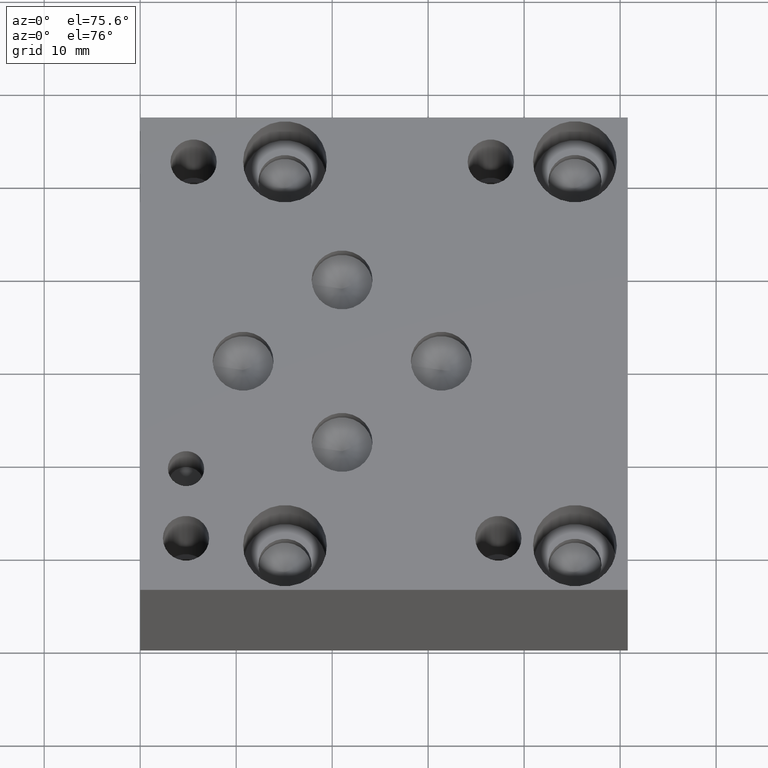
[diagram: clean part render]
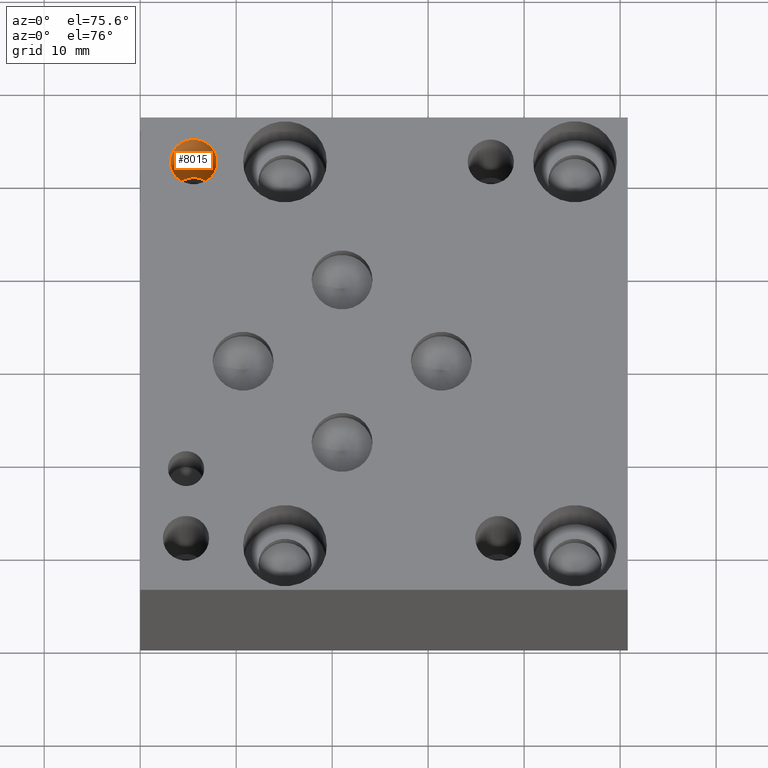
[diagram: same view with one face highlighted and labeled with its STEP entity id]
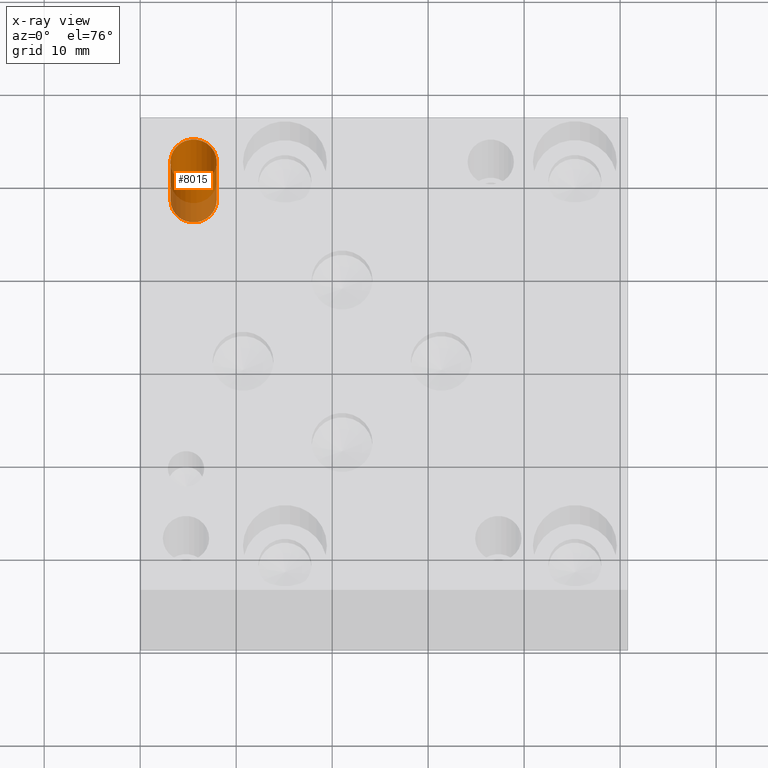
[diagram: x-ray of the same camera — body ghosted, the highlighted face saturated]
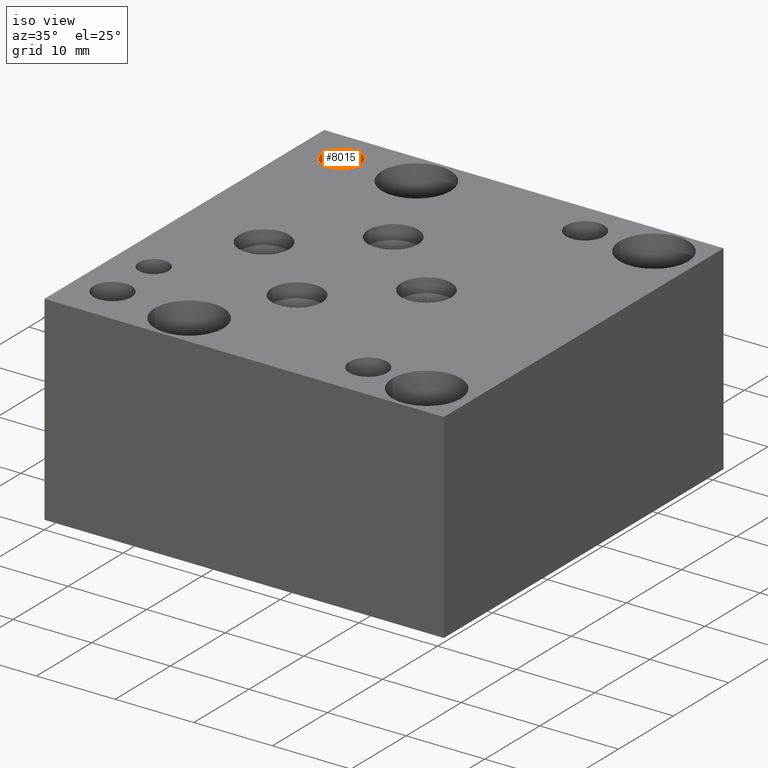
[diagram: same view with one face highlighted and labeled with its STEP entity id]
A machine part, auxiliary view. The second image highlights one B-rep face of the part: STEP entity #8015.
The next image is the same camera in x-ray: the body ghosted, the highlighted face saturated — about 27% of this face is hidden behind the body in this view.
A second angle (iso view) of the same face is appended — the face is thin or edge-on in the first view.
In plain terms, the highlighted cylindrical surface (bore or boss wall) has radius 2.413 mm, axis along (0, 0, 1).
Its self-contained STEP definition (entity closure, byte-faithful):
#136=CIRCLE('',#8452,2.413);
#137=CIRCLE('',#8453,2.413);
#139=CIRCLE('',#8456,2.413);
#140=CIRCLE('',#8457,2.413);
#182=CYLINDRICAL_SURFACE('',#8455,2.413);
#894=FACE_OUTER_BOUND('',#1341,.T.);
#1341=EDGE_LOOP('',(#6922,#6923,#6924,#6925,#6926,#6927));
#2171=LINE('',#13464,#2978);
#2978=VECTOR('',#10106,2.413);
#3724=VERTEX_POINT('',#13453);
#3725=VERTEX_POINT('',#13454);
#3727=VERTEX_POINT('',#13460);
#3728=VERTEX_POINT('',#13461);
#4809=EDGE_CURVE('',#3724,#3725,#136,.T.);
#4810=EDGE_CURVE('',#3725,#3724,#137,.T.);
#4812=EDGE_CURVE('',#3727,#3728,#139,.T.);
#4813=EDGE_CURVE('',#3728,#3727,#140,.T.);
#4814=EDGE_CURVE('',#3728,#3725,#2171,.T.);
#6922=ORIENTED_EDGE('',*,*,#4812,.F.);
#6923=ORIENTED_EDGE('',*,*,#4813,.F.);
#6924=ORIENTED_EDGE('',*,*,#4814,.T.);
#6925=ORIENTED_EDGE('',*,*,#4809,.F.);
#6926=ORIENTED_EDGE('',*,*,#4810,.F.);
#6927=ORIENTED_EDGE('',*,*,#4814,.F.);
#8015=ADVANCED_FACE('',(#894),#182,.F.);
#8452=AXIS2_PLACEMENT_3D('',#13455,#10094,#10095);
#8453=AXIS2_PLACEMENT_3D('',#13456,#10096,#10097);
#8455=AXIS2_PLACEMENT_3D('',#13459,#10100,#10101);
#8456=AXIS2_PLACEMENT_3D('',#13462,#10102,#10103);
#8457=AXIS2_PLACEMENT_3D('',#13463,#10104,#10105);
#10094=DIRECTION('center_axis',(0.,0.,1.));
#10095=DIRECTION('ref_axis',(1.,0.,0.));
#10096=DIRECTION('center_axis',(0.,0.,1.));
#10097=DIRECTION('ref_axis',(1.,0.,0.));
#10100=DIRECTION('center_axis',(0.,0.,1.));
#10101=DIRECTION('ref_axis',(1.,0.,0.));
#10102=DIRECTION('center_axis',(0.,0.,-1.));
#10103=DIRECTION('ref_axis',(1.,0.,0.));
#10104=DIRECTION('center_axis',(0.,0.,-1.));
#10105=DIRECTION('ref_axis',(1.,0.,0.));
#10106=DIRECTION('',(0.,0.,-1.));
#13453=CARTESIAN_POINT('',(7.9756,46.0248,9.398));
#13454=CARTESIAN_POINT('',(3.1496,46.0248,9.398));
#13455=CARTESIAN_POINT('Origin',(5.5626,46.0248,9.398));
#13456=CARTESIAN_POINT('Origin',(5.5626,46.0248,9.398));
#13459=CARTESIAN_POINT('Origin',(5.5626,46.0248,17.399));
#13460=CARTESIAN_POINT('',(7.9756,46.0248,25.4));
#13461=CARTESIAN_POINT('',(3.1496,46.0248,25.4));
#13462=CARTESIAN_POINT('Origin',(5.5626,46.0248,25.4));
#13463=CARTESIAN_POINT('Origin',(5.5626,46.0248,25.4));
#13464=CARTESIAN_POINT('',(3.1496,46.0248,17.399));